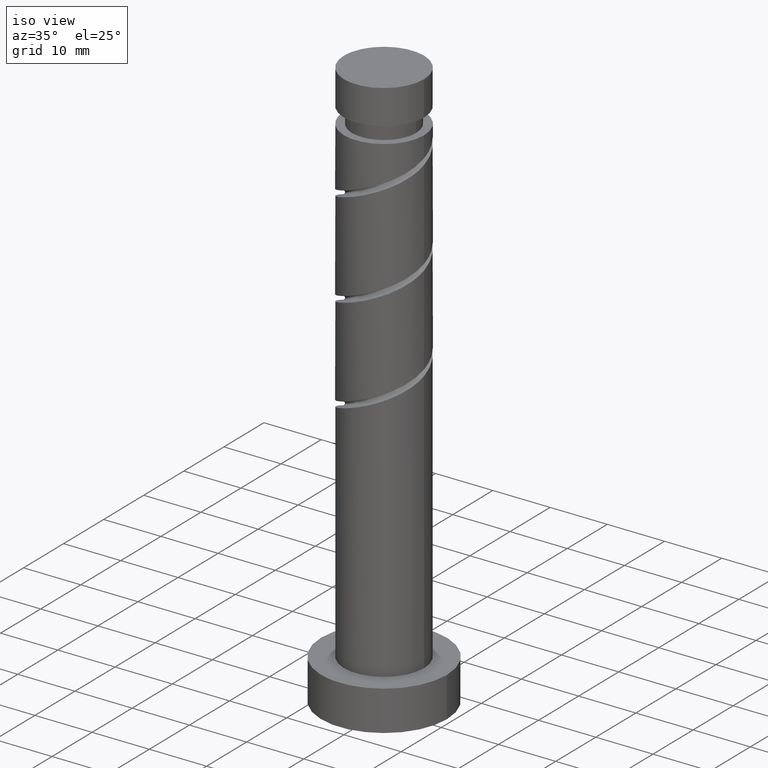
[diagram: clean part render]
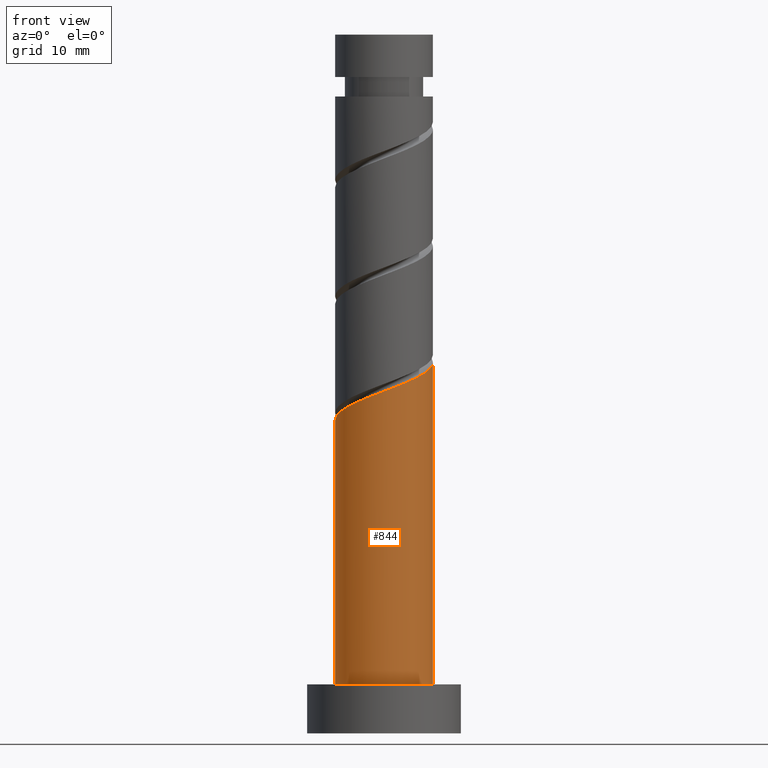
[diagram: tour spotlight — one face highlighted and labeled with its STEP entity id]
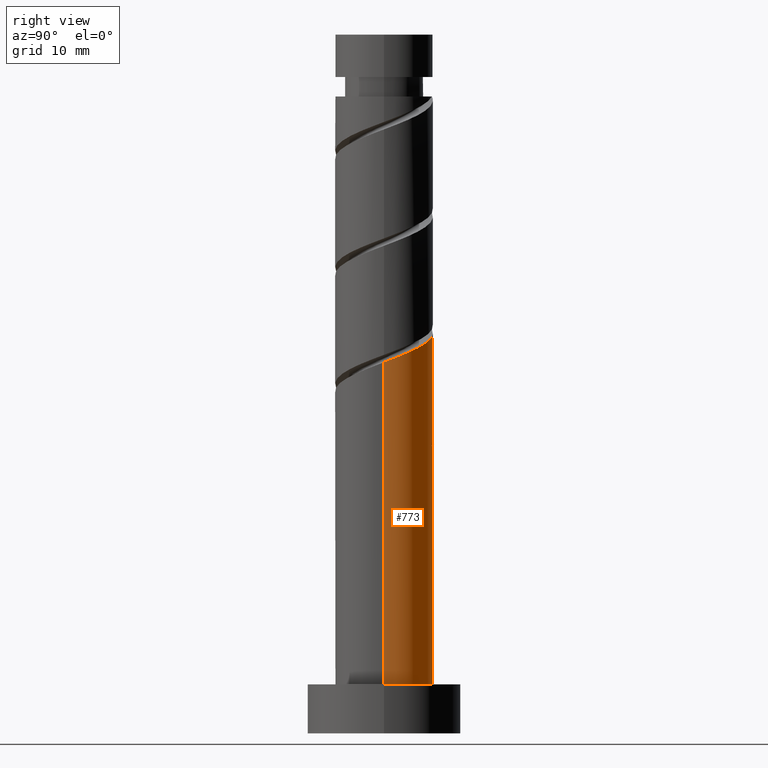
[diagram: tour spotlight — one face highlighted and labeled with its STEP entity id]
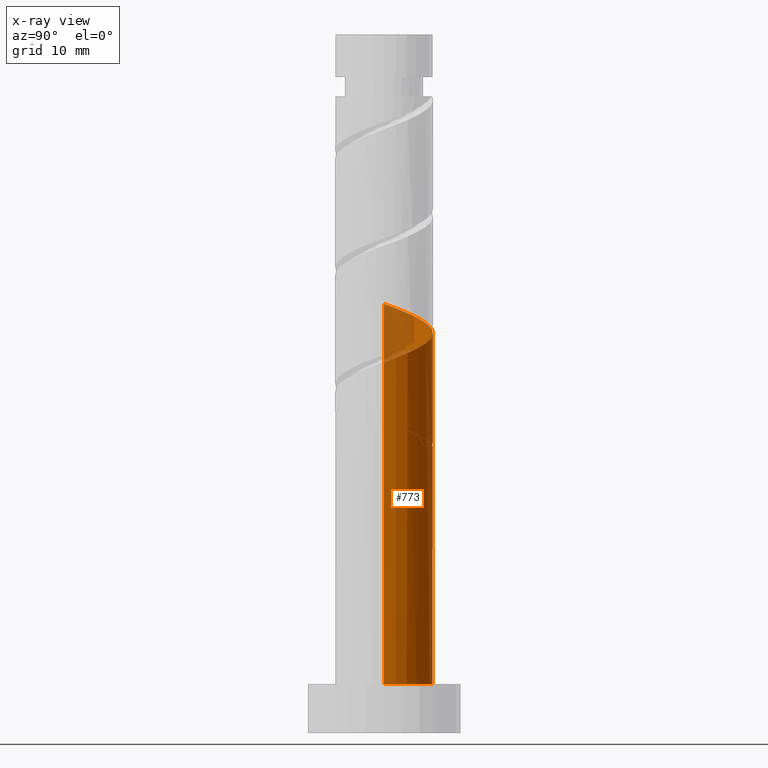
[diagram: x-ray of the same camera — body ghosted, this tour face saturated]
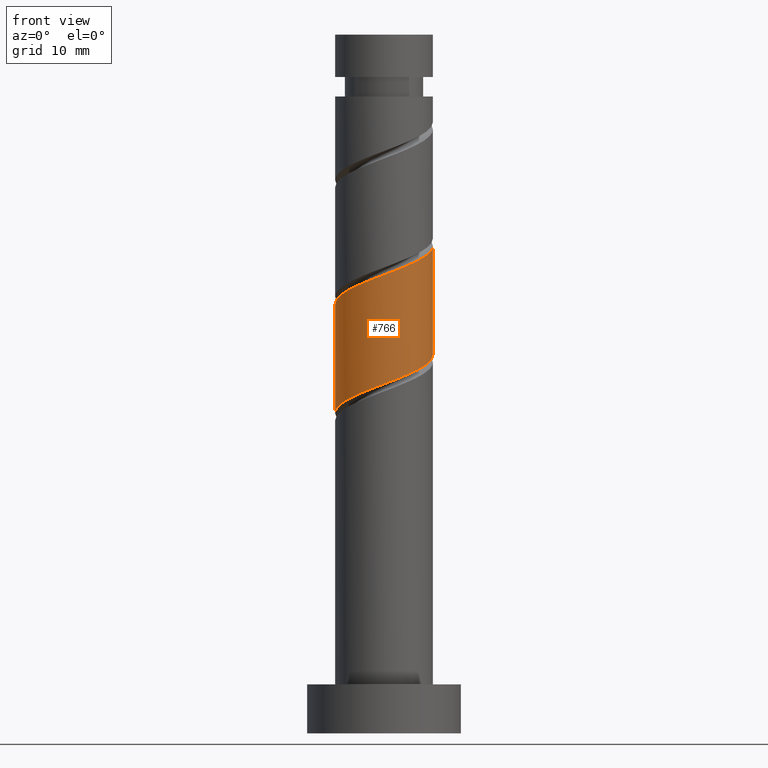
[diagram: tour spotlight — one face highlighted and labeled with its STEP entity id]
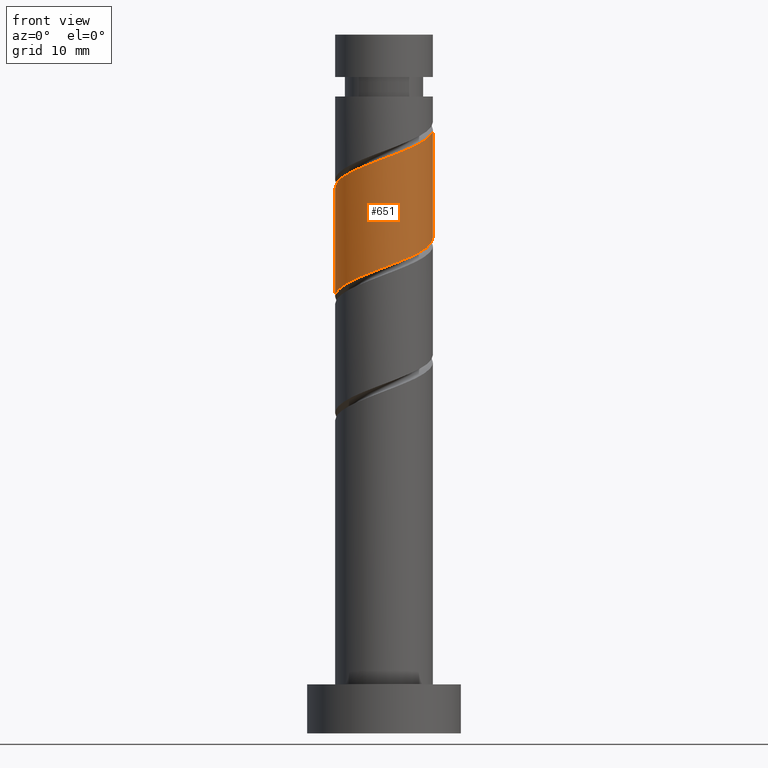
[diagram: tour spotlight — one face highlighted and labeled with its STEP entity id]
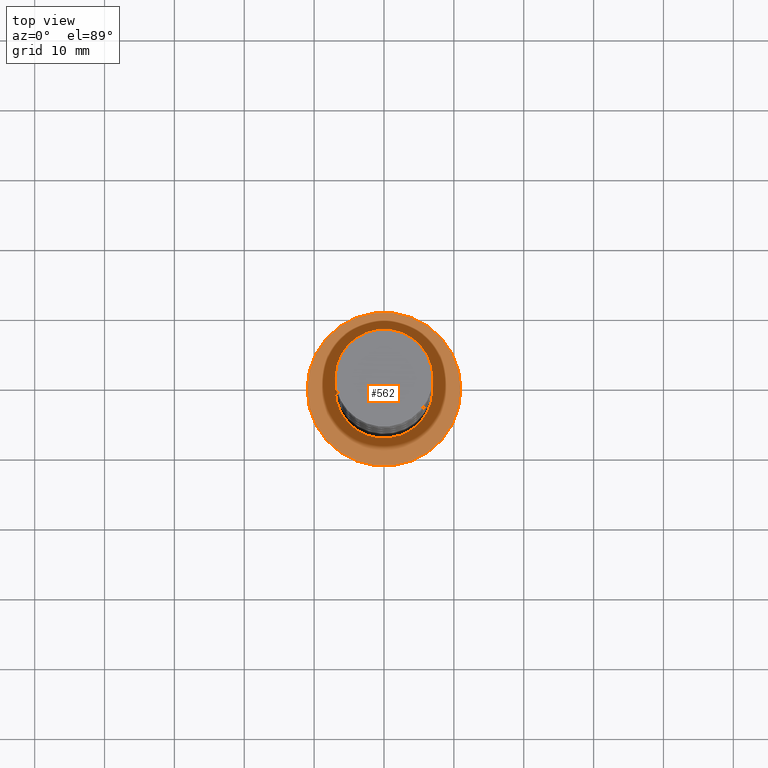
[diagram: tour spotlight — one face highlighted and labeled with its STEP entity id]
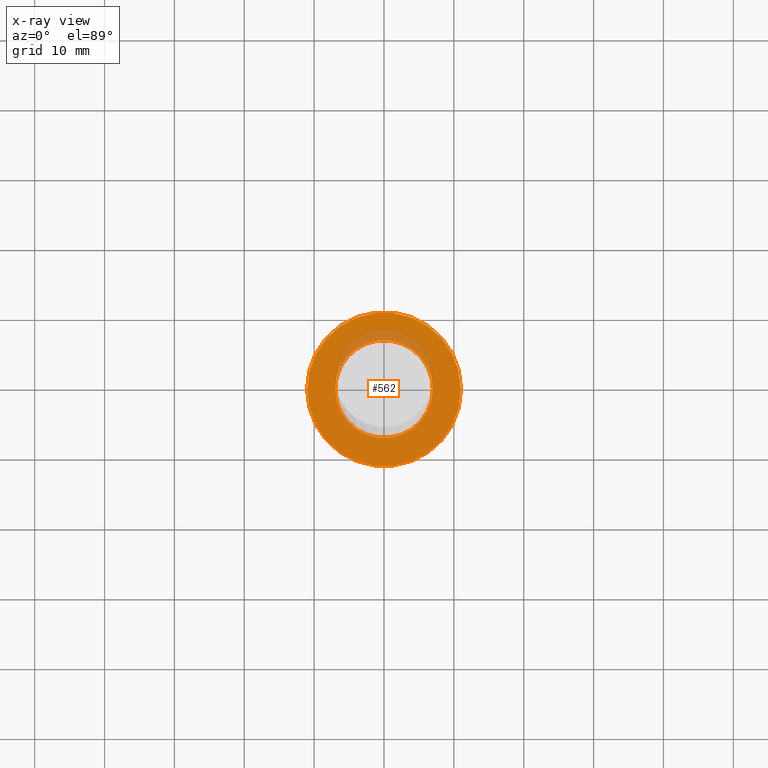
[diagram: x-ray of the same camera — body ghosted, this tour face saturated]
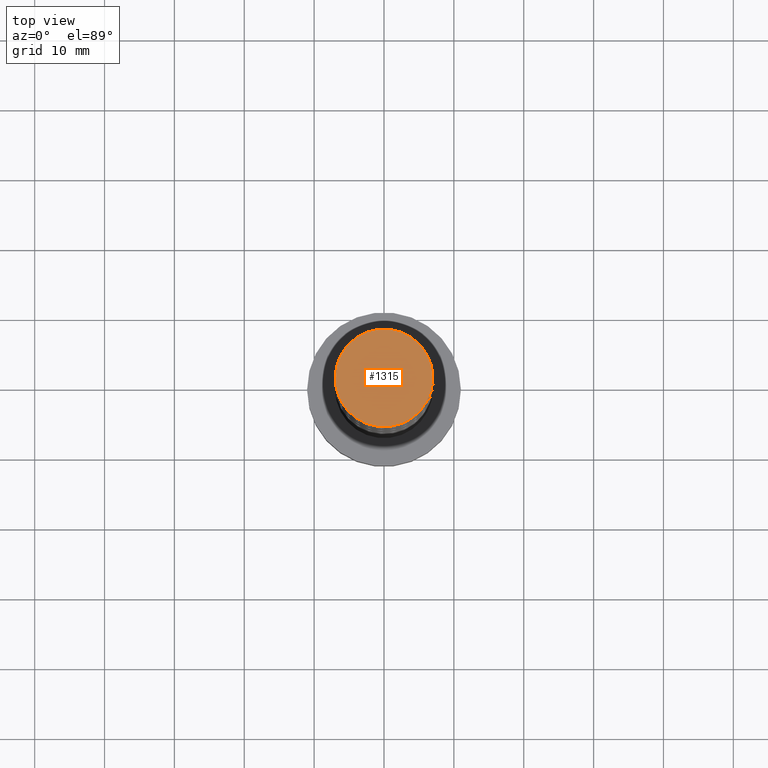
[diagram: tour spotlight — one face highlighted and labeled with its STEP entity id]
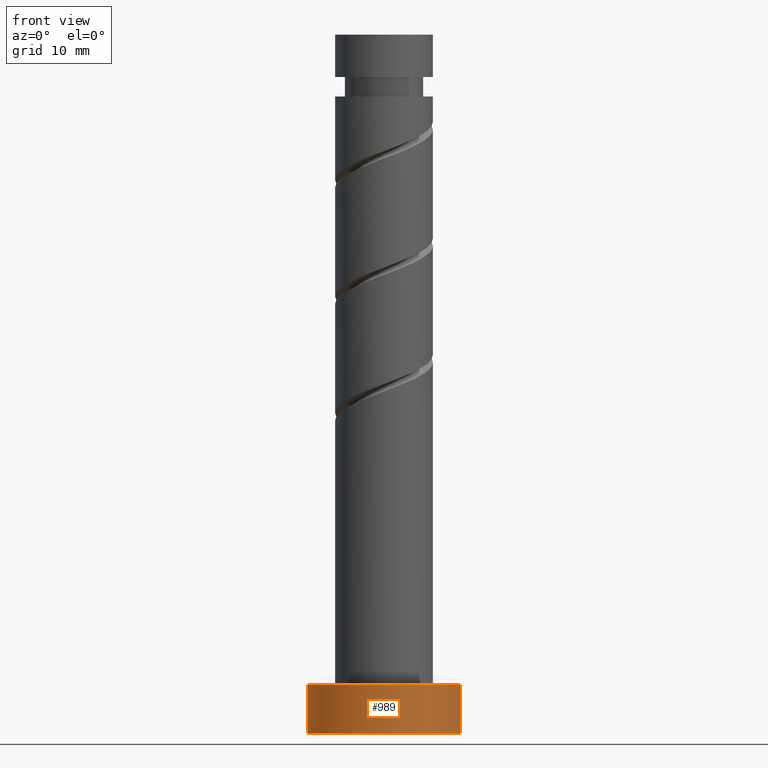
[diagram: tour spotlight — one face highlighted and labeled with its STEP entity id]
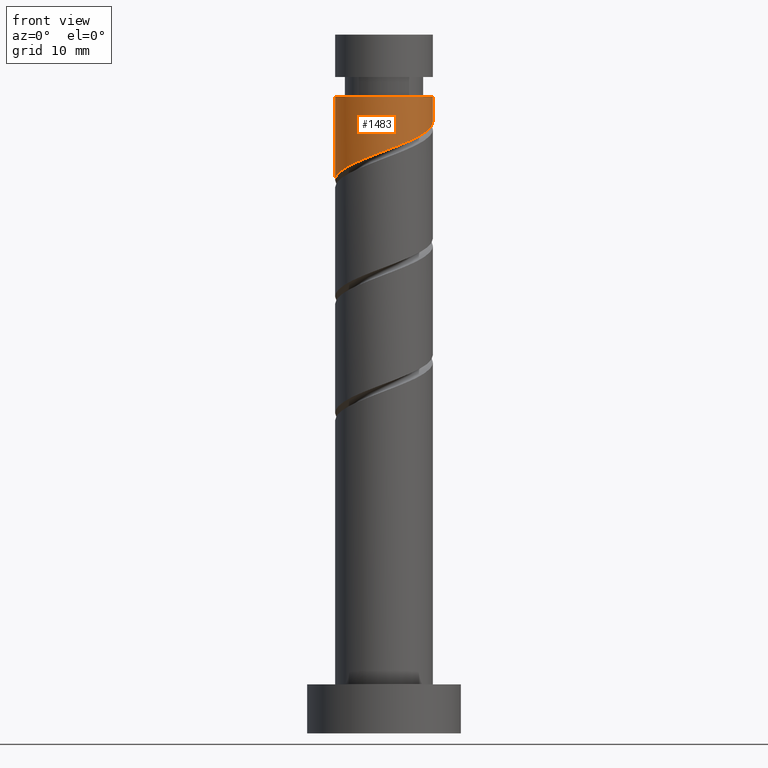
[diagram: tour spotlight — one face highlighted and labeled with its STEP entity id]
A machine part: a face-by-face anatomy tour. The part has 21 B-rep faces; the first image is the clean iso view, then the 8 largest visible faces are spotlighted one at a time (largest first), each with its STEP entity span.

Face 1 — front view, entity #844. In plain terms, the highlighted cylindrical surface (partial cylindrical patch) has radius 7 mm, axis along (-0, -0, -1).
Definition (entity closure, byte-faithful):
#30 = DIRECTION ( 'NONE',  ( 0.000000000000000000, 0.000000000000000000, 1.000000000000000000 ) ) ;
#54 = VERTEX_POINT ( 'NONE', #94 ) ;
#57 = CARTESIAN_POINT ( 'NONE',  ( -7.000000000000009770, 5.303333124147260653E-15, 44.78556087694620658 ) ) ;
#67 = CARTESIAN_POINT ( 'NONE',  ( 0.1833793242891948172, -7.105620382879023644, 49.02011946897203387 ) ) ;
#94 = CARTESIAN_POINT ( 'NONE',  ( -7.000000000000009770, 5.303333124147260653E-15, 44.78556087694620658 ) ) ;
#97 = ORIENTED_EDGE ( 'NONE', *, *, #701, .F. ) ;
#155 = AXIS2_PLACEMENT_3D ( 'NONE', #617, #30, #1276 ) ;
#171 = CARTESIAN_POINT ( 'NONE',  ( 7.000000000000000888, 8.572527594031472204E-16, 7.000000000000000000 ) ) ;
#177 = CARTESIAN_POINT ( 'NONE',  ( -6.061958099077145334, -3.711621344802781053, 46.24234169119424109 ) ) ;
#183 = CARTESIAN_POINT ( 'NONE',  ( -6.965826557536224151, -1.414471410982079069, 45.31641576526831727 ) ) ;
#198 = CARTESIAN_POINT ( 'NONE',  ( -3.342436566413458099, -6.150456714708457007, 47.63123058008311972 ) ) ;
#207 = CARTESIAN_POINT ( 'NONE',  ( 0.000000000000000000, 0.000000000000000000, 100.0000000000000000 ) ) ;
#255 = DIRECTION ( 'NONE',  ( -0.000000000000000000, -0.000000000000000000, -1.000000000000000000 ) ) ;
#284 = CARTESIAN_POINT ( 'NONE',  ( 7.000000000000013323, -1.141380602743204520, 52.68897469791394172 ) ) ;
#285 = VECTOR ( 'NONE', #1124, 1000.000000000000000 ) ;
#305 = CARTESIAN_POINT ( 'NONE',  ( 4.707881453605411437, -5.325347051691634803, 50.87197132082386730 ) ) ;
#313 = CARTESIAN_POINT ( 'NONE',  ( 5.476609438485875003, -4.359673044883936477, 51.33493428378682921 ) ) ;
#370 = AXIS2_PLACEMENT_3D ( 'NONE', #207, #460, #1264 ) ;
#395 = EDGE_CURVE ( 'NONE', #54, #726, #439, .T. ) ;
#401 = CARTESIAN_POINT ( 'NONE',  ( -2.257945103930811825, -6.739818462673714983, 48.09419354304610295 ) ) ;
#414 = CARTESIAN_POINT ( 'NONE',  ( 1.392982411949267973, -6.860000000000009202, 49.48308243193496736 ) ) ;
#439 = LINE ( 'NONE', #1356, #285 ) ;
#460 = DIRECTION ( 'NONE',  ( -0.000000000000000000, -0.000000000000000000, -1.000000000000000000 ) ) ;
#486 = EDGE_LOOP ( 'NONE', ( #1122, #97, #1146, #1193 ) ) ;
#540 = CARTESIAN_POINT ( 'NONE',  ( -4.426928028896106149, -5.561094966743207024, 47.16826761712017912 ) ) ;
#572 = CARTESIAN_POINT ( 'NONE',  ( 7.000000000000009770, -5.303333124147260653E-15, 53.11889421027954228 ) ) ;
#617 = CARTESIAN_POINT ( 'NONE',  ( 0.000000000000000000, 0.000000000000000000, 7.000000000000000000 ) ) ;
#649 = CARTESIAN_POINT ( 'NONE',  ( -6.513892328306680746, -2.563046377892429284, 45.77937872823127208 ) ) ;
#689 = CARTESIAN_POINT ( 'NONE',  ( -7.000000000000000888, 0.000000000000000000, 7.000000000000000000 ) ) ;
#695 =( BOUNDED_CURVE ( )  B_SPLINE_CURVE ( 2, ( #57, #1331, #1445, #183, #649, #177, #1104, #540, #198, #401, #998, #67, #414, #889, #895, #305, #313, #771, #1230, #284, #1143 ),
 .UNSPECIFIED., .F., .T. ) 
 B_SPLINE_CURVE_WITH_KNOTS ( ( 3, 2, 2, 2, 2, 2, 2, 2, 2, 2, 3 ),
 ( 0.05452480538552906264, 0.05555555555555558023, 0.06944444444444441977, 0.08333333333333337034, 0.09722222222222220989, 0.1111111111111111605, 0.1250000000000000000, 0.1388888888888888395, 0.1527777777777777901, 0.1666666666666666297, 0.1795248053855290626 ),
 .UNSPECIFIED. ) 
 CURVE ( )  GEOMETRIC_REPRESENTATION_ITEM ( )  RATIONAL_B_SPLINE_CURVE ( ( 0.9071930855141264738, 0.9080659294509740853, 0.9090909090909141677, 0.8952797754656484086, 0.9090909090909141677, 0.8952797754656484086, 0.9090909090909141677, 0.8952797754656484086, 0.9090909090909141677, 0.8952797754656484086, 0.9090909090909141677, 0.8952797754656484086, 0.9090909090909141677, 0.8952797754656484086, 0.9090909090909141677, 0.8952797754656484086, 0.9090909090909141677, 0.8952797754656484086, 0.9090909090909141677, 0.8963047551055884909, 0.9071930855141264738 ) ) 
 REPRESENTATION_ITEM ( '' )  );
#701 = EDGE_CURVE ( 'NONE', #54, #816, #695, .T. ) ;
#703 = CYLINDRICAL_SURFACE ( 'NONE', #370, 7.000000000000000888 ) ;
#711 = LINE ( 'NONE', #1157, #1256 ) ;
#726 = VERTEX_POINT ( 'NONE', #689 ) ;
#771 = CARTESIAN_POINT ( 'NONE',  ( 6.245337423366341234, -3.393999038076243480, 51.79789724674980533 ) ) ;
#816 = VERTEX_POINT ( 'NONE', #572 ) ;
#844 = ADVANCED_FACE ( 'NONE', ( #1041 ), #703, .T. ) ;
#889 = CARTESIAN_POINT ( 'NONE',  ( 2.602585499609338715, -6.614379617121004529, 49.94604539489793638 ) ) ;
#895 = CARTESIAN_POINT ( 'NONE',  ( 3.655233476607374854, -5.969863334406317001, 50.40900835786089829 ) ) ;
#980 = CIRCLE ( 'NONE', #155, 7.000000000000000888 ) ;
#998 = CARTESIAN_POINT ( 'NONE',  ( -1.037282889820807741, -6.922719422776364873, 48.55715650600905064 ) ) ;
#1041 = FACE_OUTER_BOUND ( 'NONE', #486, .T. ) ;
#1043 = VERTEX_POINT ( 'NONE', #171 ) ;
#1104 = CARTESIAN_POINT ( 'NONE',  ( -5.244443063986622633, -4.636358155772990486, 46.70530465415719590 ) ) ;
#1122 = ORIENTED_EDGE ( 'NONE', *, *, #1437, .F. ) ;
#1124 = DIRECTION ( 'NONE',  ( -0.000000000000000000, -0.000000000000000000, -1.000000000000000000 ) ) ;
#1143 = CARTESIAN_POINT ( 'NONE',  ( 7.000000000000009770, -5.303333124147260653E-15, 53.11889421027954228 ) ) ;
#1146 = ORIENTED_EDGE ( 'NONE', *, *, #395, .T. ) ;
#1157 = CARTESIAN_POINT ( 'NONE',  ( 7.000000000000000888, 8.572527594031472204E-16, 100.0000000000000000 ) ) ;
#1193 = ORIENTED_EDGE ( 'NONE', *, *, #1465, .T. ) ;
#1230 = CARTESIAN_POINT ( 'NONE',  ( 6.637425475935891939, -2.223641844227021824, 52.26086020971274593 ) ) ;
#1256 = VECTOR ( 'NONE', #255, 1000.000000000000000 ) ;
#1264 = DIRECTION ( 'NONE',  ( -1.000000000000000000, 0.000000000000000000, 0.000000000000000000 ) ) ;
#1276 = DIRECTION ( 'NONE',  ( 1.000000000000000000, 0.000000000000000000, 0.000000000000000000 ) ) ;
#1331 = CARTESIAN_POINT ( 'NONE',  ( -7.000000000000011546, -0.09031172032414433448, 44.81957825087856406 ) ) ;
#1356 = CARTESIAN_POINT ( 'NONE',  ( -7.000000000000000888, 0.000000000000000000, 100.0000000000000000 ) ) ;
#1437 = EDGE_CURVE ( 'NONE', #816, #1043, #711, .T. ) ;
#1445 = CARTESIAN_POINT ( 'NONE',  ( -6.997670043020834285, -0.1805933803021409767, 44.85345280230533405 ) ) ;
#1465 = EDGE_CURVE ( 'NONE', #726, #1043, #980, .T. ) ;

Face 2 — right view, entity #773. An x-ray twin of the same camera follows (body ghosted, this face saturated) — the face is partly hidden behind the body. In plain terms, the highlighted cylindrical surface (partial cylindrical patch) has radius 7 mm, axis along (-0, -0, -1).
Definition (entity closure, byte-faithful):
#25 = LINE ( 'NONE', #1279, #1096 ) ;
#48 = CARTESIAN_POINT ( 'NONE',  ( 2.257945103930814490, 6.739818462673713206, 56.42752687637943154 ) ) ;
#54 = VERTEX_POINT ( 'NONE', #94 ) ;
#85 = CARTESIAN_POINT ( 'NONE',  ( -6.637425475935891939, 2.223641844227019160, 60.59419354304608163 ) ) ;
#94 = CARTESIAN_POINT ( 'NONE',  ( -7.000000000000009770, 5.303333124147260653E-15, 44.78556087694620658 ) ) ;
#105 = DIRECTION ( 'NONE',  ( -1.000000000000000000, 0.000000000000000000, 0.000000000000000000 ) ) ;
#109 = CARTESIAN_POINT ( 'NONE',  ( -2.602585499609341824, 6.614379617121002752, 41.61271206156461488 ) ) ;
#118 = CARTESIAN_POINT ( 'NONE',  ( -6.999999999999997335, -3.465840238879363017E-15, 45.84727065359040665 ) ) ;
#139 = CARTESIAN_POINT ( 'NONE',  ( -4.426928028896096379, 5.561094966743197254, 43.46456391341645542 ) ) ;
#151 = CARTESIAN_POINT ( 'NONE',  ( -6.513892328306670088, 2.563046377892426619, 44.85345280230532694 ) ) ;
#153 = ORIENTED_EDGE ( 'NONE', *, *, #1268, .F. ) ;
#171 = CARTESIAN_POINT ( 'NONE',  ( 7.000000000000000888, 8.572527594031472204E-16, 7.000000000000000000 ) ) ;
#188 = CARTESIAN_POINT ( 'NONE',  ( 6.997670043020834285, 0.1805933803021416428, 53.18678613563866975 ) ) ;
#203 = CARTESIAN_POINT ( 'NONE',  ( -7.000000000000013323, 1.141380602743200523, 61.02230803124725611 ) ) ;
#246 = CIRCLE ( 'NONE', #862, 7.000000000000000888 ) ;
#255 = DIRECTION ( 'NONE',  ( -0.000000000000000000, -0.000000000000000000, -1.000000000000000000 ) ) ;
#285 = VECTOR ( 'NONE', #1124, 1000.000000000000000 ) ;
#290 = DIRECTION ( 'NONE',  ( -1.000000000000000000, 0.000000000000000000, 0.000000000000000000 ) ) ;
#296 = CARTESIAN_POINT ( 'NONE',  ( 6.061958099077146223, 3.711621344802777056, 54.57567502452758390 ) ) ;
#311 = CARTESIAN_POINT ( 'NONE',  ( 1.392982411949269528, 6.859999999999999432, 41.14974909860163876 ) ) ;
#332 =( BOUNDED_CURVE ( )  B_SPLINE_CURVE ( 2, ( #928, #109, #1039, #777, #458, #1227, #663, #738, #1080 ),
 .UNSPECIFIED., .F., .T. ) 
 B_SPLINE_CURVE_WITH_KNOTS ( ( 3, 2, 2, 2, 3 ),
 ( 0.000000000000000000, 0.01388888888888883955, 0.02777777777777779011, 0.04166666666666662966, 0.05452480538552906264 ),
 .UNSPECIFIED. ) 
 CURVE ( )  GEOMETRIC_REPRESENTATION_ITEM ( )  RATIONAL_B_SPLINE_CURVE ( ( 0.9090909090909141677, 0.8952797754656484086, 0.9090909090909141677, 0.8952797754656484086, 0.9090909090909141677, 0.8952797754656484086, 0.9090909090909141677, 0.8963047551055884909, 0.9071930855141264738 ) ) 
 REPRESENTATION_ITEM ( '' )  );
#360 = ORIENTED_EDGE ( 'NONE', *, *, #395, .F. ) ;
#395 = EDGE_CURVE ( 'NONE', #54, #726, #439, .T. ) ;
#400 = CARTESIAN_POINT ( 'NONE',  ( -0.1833793242891969266, 7.105620382879022756, 57.35345280230534826 ) ) ;
#436 = AXIS2_PLACEMENT_3D ( 'NONE', #1469, #1453, #105 ) ;
#439 = LINE ( 'NONE', #1356, #285 ) ;
#458 = CARTESIAN_POINT ( 'NONE',  ( -5.476609438485875003, 4.359673044883936477, 43.00160095045348640 ) ) ;
#473 = VERTEX_POINT ( 'NONE', #501 ) ;
#482 = DIRECTION ( 'NONE',  ( 1.000000000000000000, 0.000000000000000000, 0.000000000000000000 ) ) ;
#501 = CARTESIAN_POINT ( 'NONE',  ( -6.999999999999997335, -3.465840238879362623E-15, 45.84727065359040665 ) ) ;
#508 = CARTESIAN_POINT ( 'NONE',  ( 1.037282889820812182, 6.922719422776363096, 56.89048983934237924 ) ) ;
#526 = EDGE_CURVE ( 'NONE', #830, #473, #25, .T. ) ;
#537 = CARTESIAN_POINT ( 'NONE',  ( 5.244443063986622633, 4.636358155772992262, 55.03863798749053160 ) ) ;
#546 = CARTESIAN_POINT ( 'NONE',  ( -2.602585499609341824, 6.614379617121002752, 58.27937872823128629 ) ) ;
#572 = CARTESIAN_POINT ( 'NONE',  ( 7.000000000000009770, -5.303333124147260653E-15, 53.11889421027954228 ) ) ;
#576 = CARTESIAN_POINT ( 'NONE',  ( -4.707881453605412325, 5.325347051691633915, 59.20530465415720300 ) ) ;
#610 = DIRECTION ( 'NONE',  ( -0.000000000000000000, -0.000000000000000000, -1.000000000000000000 ) ) ;
#640 = AXIS2_PLACEMENT_3D ( 'NONE', #720, #1049, #482 ) ;
#642 = CARTESIAN_POINT ( 'NONE',  ( 6.965826557536224151, 1.414471410982078625, 53.64974909860166008 ) ) ;
#663 = CARTESIAN_POINT ( 'NONE',  ( -6.637425475935891939, 2.223641844227019160, 43.92752687637941733 ) ) ;
#671 = CARTESIAN_POINT ( 'NONE',  ( -6.245337423366342122, 3.393999038076242591, 60.13123058008313393 ) ) ;
#689 = CARTESIAN_POINT ( 'NONE',  ( -7.000000000000000888, 0.000000000000000000, 7.000000000000000000 ) ) ;
#693 = ORIENTED_EDGE ( 'NONE', *, *, #1437, .T. ) ;
#705 = EDGE_LOOP ( 'NONE', ( #153, #693, #829, #360, #1005, #935, #1456, #753 ) ) ;
#711 = LINE ( 'NONE', #1157, #1256 ) ;
#713 = CARTESIAN_POINT ( 'NONE',  ( -3.342436566413450993, 6.150456714708447237, 43.00160095045348640 ) ) ;
#720 = CARTESIAN_POINT ( 'NONE',  ( 0.000000000000000000, 0.000000000000000000, 7.000000000000000000 ) ) ;
#726 = VERTEX_POINT ( 'NONE', #689 ) ;
#733 = CARTESIAN_POINT ( 'NONE',  ( 1.392982411949269528, 6.859999999999999432, 41.14974909860163876 ) ) ;
#738 = CARTESIAN_POINT ( 'NONE',  ( -7.000000000000013323, 1.141380602743200523, 44.35564136458060602 ) ) ;
#741 = CARTESIAN_POINT ( 'NONE',  ( -5.244443063986612863, 4.636358155772986933, 43.92752687637941023 ) ) ;
#753 = ORIENTED_EDGE ( 'NONE', *, *, #526, .F. ) ;
#773 = ADVANCED_FACE ( 'NONE', ( #1254 ), #1130, .T. ) ;
#777 = CARTESIAN_POINT ( 'NONE',  ( -4.707881453605412325, 5.325347051691633915, 42.53863798749053160 ) ) ;
#805 = CARTESIAN_POINT ( 'NONE',  ( -3.655233476607374854, 5.969863334406317001, 58.74234169119423399 ) ) ;
#816 = VERTEX_POINT ( 'NONE', #572 ) ;
#826 = CARTESIAN_POINT ( 'NONE',  ( -6.965826557536210828, 1.414471410982078625, 45.31641576526831017 ) ) ;
#829 = ORIENTED_EDGE ( 'NONE', *, *, #870, .T. ) ;
#830 = VERTEX_POINT ( 'NONE', #1035 ) ;
#836 = VERTEX_POINT ( 'NONE', #1239 ) ;
#862 = AXIS2_PLACEMENT_3D ( 'NONE', #1203, #873, #290 ) ;
#870 = EDGE_CURVE ( 'NONE', #1043, #726, #1487, .T. ) ;
#873 = DIRECTION ( 'NONE',  ( 0.000000000000000000, -0.000000000000000000, -1.000000000000000000 ) ) ;
#900 = CARTESIAN_POINT ( 'NONE',  ( -1.392982411949267085, 6.860000000000009202, 57.81641576526829596 ) ) ;
#902 =( BOUNDED_CURVE ( )  B_SPLINE_CURVE ( 2, ( #1088, #1322, #188, #642, #1429, #296, #537, #1004, #1443, #48, #508, #400, #900, #546, #805, #576, #1236, #671, #85, #203, #1026 ),
 .UNSPECIFIED., .F., .T. ) 
 B_SPLINE_CURVE_WITH_KNOTS ( ( 3, 2, 2, 2, 2, 2, 2, 2, 2, 2, 3 ),
 ( 0.1795248053855290626, 0.1805555555555555802, 0.1944444444444444198, 0.2083333333333333703, 0.2222222222222222099, 0.2361111111111111605, 0.2500000000000000000, 0.2638888888888888395, 0.2777777777777777901, 0.2916666666666666297, 0.3045248053855290626 ),
 .UNSPECIFIED. ) 
 CURVE ( )  GEOMETRIC_REPRESENTATION_ITEM ( )  RATIONAL_B_SPLINE_CURVE ( ( 0.9071930855141264738, 0.9080659294509740853, 0.9090909090909141677, 0.8952797754656484086, 0.9090909090909141677, 0.8952797754656484086, 0.9090909090909141677, 0.8952797754656484086, 0.9090909090909141677, 0.8952797754656484086, 0.9090909090909141677, 0.8952797754656484086, 0.9090909090909141677, 0.8952797754656484086, 0.9090909090909141677, 0.8952797754656484086, 0.9090909090909141677, 0.8952797754656484086, 0.9090909090909141677, 0.8963047551055884909, 0.9071930855141264738 ) ) 
 REPRESENTATION_ITEM ( '' )  );
#928 = CARTESIAN_POINT ( 'NONE',  ( -1.392982411949267085, 6.860000000000009202, 41.14974909860163876 ) ) ;
#935 = ORIENTED_EDGE ( 'NONE', *, *, #1248, .T. ) ;
#971 = EDGE_CURVE ( 'NONE', #473, #1408, #1311, .T. ) ;
#1004 = CARTESIAN_POINT ( 'NONE',  ( 4.426928028896107925, 5.561094966743206136, 55.50160095045352904 ) ) ;
#1005 = ORIENTED_EDGE ( 'NONE', *, *, #1432, .F. ) ;
#1026 = CARTESIAN_POINT ( 'NONE',  ( -7.000000000000009770, 5.303333124147260653E-15, 61.45222754361287798 ) ) ;
#1035 = CARTESIAN_POINT ( 'NONE',  ( -7.000000000000009770, 5.303333124147260653E-15, 61.45222754361287087 ) ) ;
#1039 = CARTESIAN_POINT ( 'NONE',  ( -3.655233476607374854, 5.969863334406317001, 42.07567502452757680 ) ) ;
#1043 = VERTEX_POINT ( 'NONE', #171 ) ;
#1049 = DIRECTION ( 'NONE',  ( 0.000000000000000000, 0.000000000000000000, 1.000000000000000000 ) ) ;
#1064 = CARTESIAN_POINT ( 'NONE',  ( -6.999999999999997335, 0.09031172032414595818, 45.81325327965803496 ) ) ;
#1073 = CARTESIAN_POINT ( 'NONE',  ( -1.037282889820803744, 6.922719422776354214, 42.07567502452754837 ) ) ;
#1080 = CARTESIAN_POINT ( 'NONE',  ( -7.000000000000009770, 5.303333124147260653E-15, 44.78556087694620658 ) ) ;
#1088 = CARTESIAN_POINT ( 'NONE',  ( 7.000000000000009770, -5.303333124147260653E-15, 53.11889421027954228 ) ) ;
#1096 = VECTOR ( 'NONE', #610, 1000.000000000000000 ) ;
#1124 = DIRECTION ( 'NONE',  ( -0.000000000000000000, -0.000000000000000000, -1.000000000000000000 ) ) ;
#1130 = CYLINDRICAL_SURFACE ( 'NONE', #436, 7.000000000000000888 ) ;
#1157 = CARTESIAN_POINT ( 'NONE',  ( 7.000000000000000888, 8.572527594031472204E-16, 100.0000000000000000 ) ) ;
#1160 = CARTESIAN_POINT ( 'NONE',  ( -2.257945103930805608, 6.739818462673701660, 42.53863798749053160 ) ) ;
#1203 = CARTESIAN_POINT ( 'NONE',  ( 0.000000000000000000, 0.000000000000000000, 41.14974909860163876 ) ) ;
#1227 = CARTESIAN_POINT ( 'NONE',  ( -6.245337423366342122, 3.393999038076242591, 43.46456391341644832 ) ) ;
#1236 = CARTESIAN_POINT ( 'NONE',  ( -5.476609438485875003, 4.359673044883936477, 59.66826761712015070 ) ) ;
#1239 = CARTESIAN_POINT ( 'NONE',  ( -1.392982411949267085, 6.860000000000009202, 41.14974909860163876 ) ) ;
#1248 = EDGE_CURVE ( 'NONE', #836, #1408, #246, .T. ) ;
#1254 = FACE_OUTER_BOUND ( 'NONE', #705, .T. ) ;
#1256 = VECTOR ( 'NONE', #255, 1000.000000000000000 ) ;
#1268 = EDGE_CURVE ( 'NONE', #816, #830, #902, .T. ) ;
#1270 = CARTESIAN_POINT ( 'NONE',  ( -6.061958099077132900, 3.711621344802776168, 44.39048983934237924 ) ) ;
#1278 = CARTESIAN_POINT ( 'NONE',  ( 0.1833793242891981479, 7.105620382879009433, 41.61271206156460778 ) ) ;
#1279 = CARTESIAN_POINT ( 'NONE',  ( -7.000000000000000888, 0.000000000000000000, 100.0000000000000000 ) ) ;
#1311 =( BOUNDED_CURVE ( )  B_SPLINE_CURVE ( 2, ( #118, #1064, #1414, #826, #151, #1270, #741, #139, #713, #1160, #1073, #1278, #733 ),
 .UNSPECIFIED., .F., .T. ) 
 B_SPLINE_CURVE_WITH_KNOTS ( ( 3, 2, 2, 2, 2, 2, 3 ),
 ( 0.9295248053855290626, 0.9305555555555555802, 0.9444444444444444198, 0.9583333333333333703, 0.9722222222222222099, 0.9861111111111111605, 1.000000000000000000 ),
 .UNSPECIFIED. ) 
 CURVE ( )  GEOMETRIC_REPRESENTATION_ITEM ( )  RATIONAL_B_SPLINE_CURVE ( ( 0.9071930855141197014, 0.9080659294509674240, 0.9090909090909075063, 0.8952797754656419693, 0.9090909090909075063, 0.8952797754656419693, 0.9090909090909075063, 0.8952797754656419693, 0.9090909090909075063, 0.8952797754656419693, 0.9090909090909075063, 0.8952797754656419693, 0.9090909090909075063 ) ) 
 REPRESENTATION_ITEM ( '' )  );
#1322 = CARTESIAN_POINT ( 'NONE',  ( 7.000000000000011546, 0.09031172032414463979, 53.15291158421190687 ) ) ;
#1356 = CARTESIAN_POINT ( 'NONE',  ( -7.000000000000000888, 0.000000000000000000, 100.0000000000000000 ) ) ;
#1408 = VERTEX_POINT ( 'NONE', #311 ) ;
#1414 = CARTESIAN_POINT ( 'NONE',  ( -6.997670043020820962, 0.1805933803021424477, 45.77937872823127208 ) ) ;
#1429 = CARTESIAN_POINT ( 'NONE',  ( 6.513892328306682522, 2.563046377892426619, 54.11271206156460778 ) ) ;
#1432 = EDGE_CURVE ( 'NONE', #836, #54, #332, .T. ) ;
#1437 = EDGE_CURVE ( 'NONE', #816, #1043, #711, .T. ) ;
#1443 = CARTESIAN_POINT ( 'NONE',  ( 3.342436566413459431, 6.150456714708457007, 55.96456391341645542 ) ) ;
#1453 = DIRECTION ( 'NONE',  ( -0.000000000000000000, -0.000000000000000000, -1.000000000000000000 ) ) ;
#1456 = ORIENTED_EDGE ( 'NONE', *, *, #971, .F. ) ;
#1469 = CARTESIAN_POINT ( 'NONE',  ( 0.000000000000000000, 0.000000000000000000, 100.0000000000000000 ) ) ;
#1487 = CIRCLE ( 'NONE', #640, 7.000000000000000888 ) ;

Face 3 — front view, entity #766. In plain terms, the highlighted cylindrical surface (partial cylindrical patch) has radius 7 mm, axis along (-0, -0, -1).
Definition (entity closure, byte-faithful):
#8 = CARTESIAN_POINT ( 'NONE',  ( -6.245337423366329688, -3.393999038076235486, 47.16826761712015781 ) ) ;
#25 = LINE ( 'NONE', #1279, #1096 ) ;
#55 = CARTESIAN_POINT ( 'NONE',  ( -7.000000000000009770, 5.303333124147260653E-15, 61.45222754361287798 ) ) ;
#60 = CARTESIAN_POINT ( 'NONE',  ( 4.707881453605411437, -5.325347051691634803, 67.53863798749056002 ) ) ;
#66 = CARTESIAN_POINT ( 'NONE',  ( -6.965826557536224151, -1.414471410982079069, 61.98308243193499578 ) ) ;
#69 =( BOUNDED_CURVE ( )  B_SPLINE_CURVE ( 2, ( #119, #1367, #800, #691, #696, #1050, #818, #106, #1485, #320, #342, #593, #1240, #1260, #208, #931, #919, #8, #1348, #1265, #231 ),
 .UNSPECIFIED., .F., .T. ) 
 B_SPLINE_CURVE_WITH_KNOTS ( ( 3, 2, 2, 2, 2, 2, 2, 2, 2, 2, 3 ),
 ( 0.8045248053855290626, 0.8055555555555555802, 0.8194444444444444198, 0.8333333333333333703, 0.8472222222222222099, 0.8611111111111111605, 0.8750000000000000000, 0.8888888888888888395, 0.9027777777777777901, 0.9166666666666666297, 0.9295248053855290626 ),
 .UNSPECIFIED. ) 
 CURVE ( )  GEOMETRIC_REPRESENTATION_ITEM ( )  RATIONAL_B_SPLINE_CURVE ( ( 0.9071930855141197014, 0.9080659294509674240, 0.9090909090909075063, 0.8952797754656419693, 0.9090909090909075063, 0.8952797754656419693, 0.9090909090909075063, 0.8952797754656419693, 0.9090909090909075063, 0.8952797754656419693, 0.9090909090909075063, 0.8952797754656419693, 0.9090909090909075063, 0.8952797754656419693, 0.9090909090909075063, 0.8952797754656419693, 0.9090909090909075063, 0.8952797754656419693, 0.9090909090909075063, 0.8963047551055820517, 0.9071930855141197014 ) ) 
 REPRESENTATION_ITEM ( '' )  );
#91 = EDGE_CURVE ( 'NONE', #724, #934, #210, .T. ) ;
#106 = CARTESIAN_POINT ( 'NONE',  ( 4.426928028896096379, -5.561094966743198142, 51.79789724674980533 ) ) ;
#119 = CARTESIAN_POINT ( 'NONE',  ( 7.000000000000000000, 9.411548924543097934E-16, 54.18060398692372814 ) ) ;
#141 = ORIENTED_EDGE ( 'NONE', *, *, #526, .T. ) ;
#142 = VECTOR ( 'NONE', #555, 1000.000000000000000 ) ;
#208 = CARTESIAN_POINT ( 'NONE',  ( -3.655233476607371745, -5.969863334406305455, 48.55715650600905064 ) ) ;
#210 = LINE ( 'NONE', #1010, #142 ) ;
#214 = DIRECTION ( 'NONE',  ( -1.000000000000000000, 0.000000000000000000, 0.000000000000000000 ) ) ;
#227 =( BOUNDED_CURVE ( )  B_SPLINE_CURVE ( 2, ( #55, #632, #655, #66, #648, #1436, #752, #991, #412, #762, #1099, #893, #1107, #528, #513, #60, #986, #407, #756, #1206, #997 ),
 .UNSPECIFIED., .F., .T. ) 
 B_SPLINE_CURVE_WITH_KNOTS ( ( 3, 2, 2, 2, 2, 2, 2, 2, 2, 2, 3 ),
 ( 0.3045248053855290626, 0.3055555555555555802, 0.3194444444444444198, 0.3333333333333333703, 0.3472222222222222099, 0.3611111111111111605, 0.3750000000000000000, 0.3888888888888888395, 0.4027777777777777901, 0.4166666666666666297, 0.4295248053855290626 ),
 .UNSPECIFIED. ) 
 CURVE ( )  GEOMETRIC_REPRESENTATION_ITEM ( )  RATIONAL_B_SPLINE_CURVE ( ( 0.9071930855141264738, 0.9080659294509740853, 0.9090909090909141677, 0.8952797754656484086, 0.9090909090909141677, 0.8952797754656484086, 0.9090909090909141677, 0.8952797754656484086, 0.9090909090909141677, 0.8952797754656484086, 0.9090909090909141677, 0.8952797754656484086, 0.9090909090909141677, 0.8952797754656484086, 0.9090909090909141677, 0.8952797754656484086, 0.9090909090909141677, 0.8952797754656484086, 0.9090909090909141677, 0.8963047551055884909, 0.9071930855141264738 ) ) 
 REPRESENTATION_ITEM ( '' )  );
#231 = CARTESIAN_POINT ( 'NONE',  ( -6.999999999999997335, -3.465840238879363017E-15, 45.84727065359040665 ) ) ;
#316 = EDGE_CURVE ( 'NONE', #934, #473, #69, .T. ) ;
#320 = CARTESIAN_POINT ( 'NONE',  ( 2.257945103930803832, -6.739818462673701660, 50.87197132082386730 ) ) ;
#342 = CARTESIAN_POINT ( 'NONE',  ( 1.037282889820803300, -6.922719422776354214, 50.40900835786089829 ) ) ;
#407 = CARTESIAN_POINT ( 'NONE',  ( 6.245337423366341234, -3.393999038076243480, 68.46456391341646963 ) ) ;
#412 = CARTESIAN_POINT ( 'NONE',  ( -3.342436566413458099, -6.150456714708457007, 64.29789724674979823 ) ) ;
#473 = VERTEX_POINT ( 'NONE', #501 ) ;
#501 = CARTESIAN_POINT ( 'NONE',  ( -6.999999999999997335, -3.465840238879362623E-15, 45.84727065359040665 ) ) ;
#513 = CARTESIAN_POINT ( 'NONE',  ( 3.655233476607374854, -5.969863334406317001, 67.07567502452756969 ) ) ;
#526 = EDGE_CURVE ( 'NONE', #830, #473, #25, .T. ) ;
#528 = CARTESIAN_POINT ( 'NONE',  ( 2.602585499609338715, -6.614379617121004529, 66.61271206156463620 ) ) ;
#529 = EDGE_LOOP ( 'NONE', ( #673, #984, #141, #1280 ) ) ;
#555 = DIRECTION ( 'NONE',  ( -0.000000000000000000, -0.000000000000000000, -1.000000000000000000 ) ) ;
#593 = CARTESIAN_POINT ( 'NONE',  ( -0.1833793242892007014, -7.105620382879011210, 49.94604539489795059 ) ) ;
#610 = DIRECTION ( 'NONE',  ( -0.000000000000000000, -0.000000000000000000, -1.000000000000000000 ) ) ;
#632 = CARTESIAN_POINT ( 'NONE',  ( -7.000000000000011546, -0.09031172032414433448, 61.48624491754523547 ) ) ;
#648 = CARTESIAN_POINT ( 'NONE',  ( -6.513892328306680746, -2.563046377892429284, 62.44604539489792217 ) ) ;
#655 = CARTESIAN_POINT ( 'NONE',  ( -6.997670043020834285, -0.1805933803021409767, 61.52011946897199834 ) ) ;
#673 = ORIENTED_EDGE ( 'NONE', *, *, #91, .F. ) ;
#691 = CARTESIAN_POINT ( 'NONE',  ( 6.965826557536210828, -1.414471410982079291, 53.64974909860164587 ) ) ;
#696 = CARTESIAN_POINT ( 'NONE',  ( 6.513892328306670088, -2.563046377892426175, 53.18678613563867685 ) ) ;
#724 = VERTEX_POINT ( 'NONE', #912 ) ;
#752 = CARTESIAN_POINT ( 'NONE',  ( -5.244443063986622633, -4.636358155772990486, 63.37197132082386730 ) ) ;
#756 = CARTESIAN_POINT ( 'NONE',  ( 6.637425475935891939, -2.223641844227021824, 68.92752687637943154 ) ) ;
#762 = CARTESIAN_POINT ( 'NONE',  ( -2.257945103930811825, -6.739818462673714983, 64.76086020971276014 ) ) ;
#766 = ADVANCED_FACE ( 'NONE', ( #918 ), #807, .T. ) ;
#799 = CARTESIAN_POINT ( 'NONE',  ( 0.000000000000000000, 0.000000000000000000, 100.0000000000000000 ) ) ;
#800 = CARTESIAN_POINT ( 'NONE',  ( 6.997670043020821851, -0.1805933803021447792, 54.11271206156460067 ) ) ;
#807 = CYLINDRICAL_SURFACE ( 'NONE', #1439, 7.000000000000000888 ) ;
#818 = CARTESIAN_POINT ( 'NONE',  ( 5.244443063986611975, -4.636358155772988709, 52.26086020971274593 ) ) ;
#830 = VERTEX_POINT ( 'NONE', #1035 ) ;
#893 = CARTESIAN_POINT ( 'NONE',  ( 0.1833793242891948172, -7.105620382879023644, 65.68678613563869817 ) ) ;
#912 = CARTESIAN_POINT ( 'NONE',  ( 7.000000000000009770, -5.303333124147260653E-15, 69.78556087694620658 ) ) ;
#918 = FACE_OUTER_BOUND ( 'NONE', #529, .T. ) ;
#919 = CARTESIAN_POINT ( 'NONE',  ( -5.476609438485867010, -4.359673044883925819, 47.63123058008310551 ) ) ;
#931 = CARTESIAN_POINT ( 'NONE',  ( -4.707881453605403443, -5.325347051691623257, 48.09419354304608873 ) ) ;
#934 = VERTEX_POINT ( 'NONE', #947 ) ;
#947 = CARTESIAN_POINT ( 'NONE',  ( 7.000000000000000000, 9.411548924543097934E-16, 54.18060398692372814 ) ) ;
#984 = ORIENTED_EDGE ( 'NONE', *, *, #1186, .F. ) ;
#986 = CARTESIAN_POINT ( 'NONE',  ( 5.476609438485875003, -4.359673044883936477, 68.00160095045349351 ) ) ;
#991 = CARTESIAN_POINT ( 'NONE',  ( -4.426928028896106149, -5.561094966743207024, 63.83493428378685053 ) ) ;
#997 = CARTESIAN_POINT ( 'NONE',  ( 7.000000000000009770, -5.303333124147260653E-15, 69.78556087694620658 ) ) ;
#1010 = CARTESIAN_POINT ( 'NONE',  ( 7.000000000000000888, 8.572527594031472204E-16, 100.0000000000000000 ) ) ;
#1035 = CARTESIAN_POINT ( 'NONE',  ( -7.000000000000009770, 5.303333124147260653E-15, 61.45222754361287087 ) ) ;
#1050 = CARTESIAN_POINT ( 'NONE',  ( 6.061958099077130235, -3.711621344802780609, 52.72382317267571494 ) ) ;
#1096 = VECTOR ( 'NONE', #610, 1000.000000000000000 ) ;
#1099 = CARTESIAN_POINT ( 'NONE',  ( -1.037282889820807741, -6.922719422776364873, 65.22382317267572205 ) ) ;
#1107 = CARTESIAN_POINT ( 'NONE',  ( 1.392982411949267973, -6.860000000000009202, 66.14974909860161745 ) ) ;
#1186 = EDGE_CURVE ( 'NONE', #830, #724, #227, .T. ) ;
#1206 = CARTESIAN_POINT ( 'NONE',  ( 7.000000000000013323, -1.141380602743204520, 69.35564136458060602 ) ) ;
#1240 = CARTESIAN_POINT ( 'NONE',  ( -1.392982411949268418, -6.859999999999997655, 49.48308243193497447 ) ) ;
#1247 = DIRECTION ( 'NONE',  ( -0.000000000000000000, -0.000000000000000000, -1.000000000000000000 ) ) ;
#1260 = CARTESIAN_POINT ( 'NONE',  ( -2.602585499609341380, -6.614379617120989430, 49.02011946897201966 ) ) ;
#1265 = CARTESIAN_POINT ( 'NONE',  ( -7.000000000000000000, -1.141380602743196526, 46.27719016595602142 ) ) ;
#1279 = CARTESIAN_POINT ( 'NONE',  ( -7.000000000000000888, 0.000000000000000000, 100.0000000000000000 ) ) ;
#1280 = ORIENTED_EDGE ( 'NONE', *, *, #316, .F. ) ;
#1348 = CARTESIAN_POINT ( 'NONE',  ( -6.637425475935881281, -2.223641844227011166, 46.70530465415718879 ) ) ;
#1367 = CARTESIAN_POINT ( 'NONE',  ( 7.000000000000000000, -0.09031172032414841455, 54.14658661299137066 ) ) ;
#1436 = CARTESIAN_POINT ( 'NONE',  ( -6.061958099077145334, -3.711621344802781053, 62.90900835786091250 ) ) ;
#1439 = AXIS2_PLACEMENT_3D ( 'NONE', #799, #1247, #214 ) ;
#1485 = CARTESIAN_POINT ( 'NONE',  ( 3.342436566413450993, -6.150456714708447237, 51.33493428378682211 ) ) ;

Face 4 — front view, entity #651. In plain terms, the highlighted cylindrical surface (partial cylindrical patch) has radius 7 mm, axis along (-0, -0, -1).
Definition (entity closure, byte-faithful):
#17 = CARTESIAN_POINT ( 'NONE',  ( 5.476609438485875003, -4.359673044883936477, 84.66826761712016491 ) ) ;
#35 = CARTESIAN_POINT ( 'NONE',  ( -6.061958099077145334, -3.711621344802781053, 79.57567502452761232 ) ) ;
#90 = CARTESIAN_POINT ( 'NONE',  ( -4.707881453605403443, -5.325347051691623257, 64.76086020971276014 ) ) ;
#140 = CARTESIAN_POINT ( 'NONE',  ( 6.245337423366341234, -3.393999038076243480, 85.13123058008312682 ) ) ;
#161 = DIRECTION ( 'NONE',  ( -0.000000000000000000, -0.000000000000000000, -1.000000000000000000 ) ) ;
#215 = CARTESIAN_POINT ( 'NONE',  ( 7.000000000000000000, 9.411548924543097934E-16, 70.84727065359038534 ) ) ;
#223 = CARTESIAN_POINT ( 'NONE',  ( -2.602585499609341380, -6.614379617120989430, 65.68678613563868396 ) ) ;
#244 = CARTESIAN_POINT ( 'NONE',  ( -2.257945103930811825, -6.739818462673714983, 81.42752687637943154 ) ) ;
#265 = CARTESIAN_POINT ( 'NONE',  ( 1.392982411949267973, -6.860000000000009202, 82.81641576526830306 ) ) ;
#268 = ORIENTED_EDGE ( 'NONE', *, *, #271, .F. ) ;
#271 = EDGE_CURVE ( 'NONE', #582, #583, #1349, .T. ) ;
#327 = CARTESIAN_POINT ( 'NONE',  ( 6.965826557536210828, -1.414471410982079291, 70.31641576526830306 ) ) ;
#335 = CARTESIAN_POINT ( 'NONE',  ( -1.392982411949268418, -6.859999999999997655, 66.14974909860161745 ) ) ;
#369 = CARTESIAN_POINT ( 'NONE',  ( 7.000000000000008882, 3.704863703629635938E-15, 86.45222754361286377 ) ) ;
#378 = CARTESIAN_POINT ( 'NONE',  ( 2.602585499609338715, -6.614379617121004529, 83.27937872823125076 ) ) ;
#408 = CARTESIAN_POINT ( 'NONE',  ( 0.000000000000000000, 0.000000000000000000, 100.0000000000000000 ) ) ;
#445 = CARTESIAN_POINT ( 'NONE',  ( -6.999999999999997335, -3.465840238879363017E-15, 62.51393732025706385 ) ) ;
#450 = CARTESIAN_POINT ( 'NONE',  ( 7.000000000000008882, 3.704863703629635938E-15, 86.45222754361286377 ) ) ;
#451 = CARTESIAN_POINT ( 'NONE',  ( -6.245337423366329688, -3.393999038076235486, 63.83493428378683632 ) ) ;
#483 = CARTESIAN_POINT ( 'NONE',  ( -3.342436566413458099, -6.150456714708457007, 80.96456391341642700 ) ) ;
#484 = ORIENTED_EDGE ( 'NONE', *, *, #559, .F. ) ;
#488 = EDGE_CURVE ( 'NONE', #942, #716, #525, .T. ) ;
#493 = CARTESIAN_POINT ( 'NONE',  ( -6.965826557536224151, -1.414471410982079069, 78.64974909860168850 ) ) ;
#496 = VECTOR ( 'NONE', #161, 1000.000000000000000 ) ;
#500 = DIRECTION ( 'NONE',  ( -0.000000000000000000, -0.000000000000000000, -1.000000000000000000 ) ) ;
#525 =( BOUNDED_CURVE ( )  B_SPLINE_CURVE ( 2, ( #1076, #1084, #948, #493, #1271, #35, #1089, #723, #483, #244, #1400, #940, #265, #378, #734, #958, #17, #140, #1390, #743, #369 ),
 .UNSPECIFIED., .F., .T. ) 
 B_SPLINE_CURVE_WITH_KNOTS ( ( 3, 2, 2, 2, 2, 2, 2, 2, 2, 2, 3 ),
 ( 0.5545248053855290626, 0.5555555555555555802, 0.5694444444444444198, 0.5833333333333332593, 0.5972222222222222099, 0.6111111111111111605, 0.6250000000000000000, 0.6388888888888888395, 0.6527777777777777901, 0.6666666666666667407, 0.6795248053855291737 ),
 .UNSPECIFIED. ) 
 CURVE ( )  GEOMETRIC_REPRESENTATION_ITEM ( )  RATIONAL_B_SPLINE_CURVE ( ( 0.9071930855141262517, 0.9080659294509739743, 0.9090909090909141677, 0.8952797754656484086, 0.9090909090909141677, 0.8952797754656484086, 0.9090909090909141677, 0.8952797754656484086, 0.9090909090909141677, 0.8952797754656484086, 0.9090909090909141677, 0.8952797754656484086, 0.9090909090909141677, 0.8952797754656484086, 0.9090909090909141677, 0.8952797754656484086, 0.9090909090909141677, 0.8952797754656484086, 0.9090909090909141677, 0.8963047551055883799, 0.9071930855141265848 ) ) 
 REPRESENTATION_ITEM ( '' )  );
#559 = EDGE_CURVE ( 'NONE', #716, #582, #1181, .T. ) ;
#573 = CARTESIAN_POINT ( 'NONE',  ( 6.997670043020821851, -0.1805933803021447792, 70.77937872823123655 ) ) ;
#580 = CARTESIAN_POINT ( 'NONE',  ( 3.342436566413450993, -6.150456714708447237, 68.00160095045349351 ) ) ;
#582 = VERTEX_POINT ( 'NONE', #845 ) ;
#583 = VERTEX_POINT ( 'NONE', #1407 ) ;
#592 = AXIS2_PLACEMENT_3D ( 'NONE', #408, #779, #1420 ) ;
#625 = LINE ( 'NONE', #1388, #1044 ) ;
#633 = CARTESIAN_POINT ( 'NONE',  ( 7.000000000000000888, 8.572527594031472204E-16, 100.0000000000000000 ) ) ;
#644 = FACE_OUTER_BOUND ( 'NONE', #987, .T. ) ;
#651 = ADVANCED_FACE ( 'NONE', ( #644 ), #981, .T. ) ;
#681 = CARTESIAN_POINT ( 'NONE',  ( 4.426928028896096379, -5.561094966743198142, 68.46456391341644121 ) ) ;
#716 = VERTEX_POINT ( 'NONE', #450 ) ;
#723 = CARTESIAN_POINT ( 'NONE',  ( -4.426928028896106149, -5.561094966743207024, 80.50160095045350772 ) ) ;
#734 = CARTESIAN_POINT ( 'NONE',  ( 3.655233476607374854, -5.969863334406317001, 83.74234169119425530 ) ) ;
#743 = CARTESIAN_POINT ( 'NONE',  ( 7.000000000000013323, -1.141380602743195638, 86.02230803124726322 ) ) ;
#779 = DIRECTION ( 'NONE',  ( -0.000000000000000000, -0.000000000000000000, -1.000000000000000000 ) ) ;
#794 = CARTESIAN_POINT ( 'NONE',  ( -6.637425475935881281, -2.223641844227011166, 63.37197132082386730 ) ) ;
#813 = CARTESIAN_POINT ( 'NONE',  ( -3.655233476607371745, -5.969863334406305455, 65.22382317267570784 ) ) ;
#845 = CARTESIAN_POINT ( 'NONE',  ( 7.000000000000000000, 9.411548924543097934E-16, 70.84727065359038534 ) ) ;
#882 = ORIENTED_EDGE ( 'NONE', *, *, #954, .T. ) ;
#924 = CARTESIAN_POINT ( 'NONE',  ( 5.244443063986611975, -4.636358155772988709, 68.92752687637940312 ) ) ;
#940 = CARTESIAN_POINT ( 'NONE',  ( 0.1833793242891948172, -7.105620382879023644, 82.35345280230538378 ) ) ;
#942 = VERTEX_POINT ( 'NONE', #1292 ) ;
#948 = CARTESIAN_POINT ( 'NONE',  ( -6.997670043020834285, -0.1805933803021409767, 78.18678613563868396 ) ) ;
#954 = EDGE_CURVE ( 'NONE', #942, #583, #625, .T. ) ;
#958 = CARTESIAN_POINT ( 'NONE',  ( 4.707881453605411437, -5.325347051691634803, 84.20530465415721721 ) ) ;
#981 = CYLINDRICAL_SURFACE ( 'NONE', #592, 7.000000000000000888 ) ;
#987 = EDGE_LOOP ( 'NONE', ( #484, #1040, #882, #268 ) ) ;
#1036 = CARTESIAN_POINT ( 'NONE',  ( -0.1833793242892007014, -7.105620382879011210, 66.61271206156462199 ) ) ;
#1040 = ORIENTED_EDGE ( 'NONE', *, *, #488, .F. ) ;
#1042 = CARTESIAN_POINT ( 'NONE',  ( 2.257945103930803832, -6.739818462673701660, 67.53863798749053160 ) ) ;
#1044 = VECTOR ( 'NONE', #500, 1000.000000000000000 ) ;
#1076 = CARTESIAN_POINT ( 'NONE',  ( -7.000000000000008882, -3.704863703629635938E-15, 78.11889421027954938 ) ) ;
#1084 = CARTESIAN_POINT ( 'NONE',  ( -7.000000000000009770, -0.09031172032414365447, 78.15291158421190687 ) ) ;
#1089 = CARTESIAN_POINT ( 'NONE',  ( -5.244443063986622633, -4.636358155772990486, 80.03863798749051739 ) ) ;
#1152 = CARTESIAN_POINT ( 'NONE',  ( -7.000000000000000000, -1.141380602743196526, 62.94385683262269993 ) ) ;
#1181 = LINE ( 'NONE', #633, #496 ) ;
#1249 = CARTESIAN_POINT ( 'NONE',  ( 6.513892328306670088, -2.563046377892426175, 69.85345280230534115 ) ) ;
#1255 = CARTESIAN_POINT ( 'NONE',  ( 1.037282889820803300, -6.922719422776354214, 67.07567502452756969 ) ) ;
#1271 = CARTESIAN_POINT ( 'NONE',  ( -6.513892328306680746, -2.563046377892429284, 79.11271206156459357 ) ) ;
#1292 = CARTESIAN_POINT ( 'NONE',  ( -7.000000000000008882, -3.704863703629635938E-15, 78.11889421027953517 ) ) ;
#1349 =( BOUNDED_CURVE ( )  B_SPLINE_CURVE ( 2, ( #215, #1475, #573, #327, #1249, #1470, #924, #681, #580, #1042, #1255, #1036, #335, #223, #813, #90, #1375, #451, #794, #1152, #445 ),
 .UNSPECIFIED., .F., .T. ) 
 B_SPLINE_CURVE_WITH_KNOTS ( ( 3, 2, 2, 2, 2, 2, 2, 2, 2, 2, 3 ),
 ( 0.5545248053855290626, 0.5555555555555555802, 0.5694444444444444198, 0.5833333333333333703, 0.5972222222222222099, 0.6111111111111111605, 0.6250000000000000000, 0.6388888888888888395, 0.6527777777777777901, 0.6666666666666666297, 0.6795248053855290626 ),
 .UNSPECIFIED. ) 
 CURVE ( )  GEOMETRIC_REPRESENTATION_ITEM ( )  RATIONAL_B_SPLINE_CURVE ( ( 0.9071930855141197014, 0.9080659294509674240, 0.9090909090909075063, 0.8952797754656419693, 0.9090909090909075063, 0.8952797754656419693, 0.9090909090909075063, 0.8952797754656419693, 0.9090909090909075063, 0.8952797754656419693, 0.9090909090909075063, 0.8952797754656419693, 0.9090909090909075063, 0.8952797754656419693, 0.9090909090909075063, 0.8952797754656419693, 0.9090909090909075063, 0.8952797754656419693, 0.9090909090909075063, 0.8963047551055820517, 0.9071930855141197014 ) ) 
 REPRESENTATION_ITEM ( '' )  );
#1375 = CARTESIAN_POINT ( 'NONE',  ( -5.476609438485867010, -4.359673044883925819, 64.29789724674978402 ) ) ;
#1388 = CARTESIAN_POINT ( 'NONE',  ( -7.000000000000000888, 0.000000000000000000, 100.0000000000000000 ) ) ;
#1390 = CARTESIAN_POINT ( 'NONE',  ( 6.637425475935891939, -2.223641844227021824, 85.59419354304607452 ) ) ;
#1400 = CARTESIAN_POINT ( 'NONE',  ( -1.037282889820807741, -6.922719422776364873, 81.89048983934236503 ) ) ;
#1407 = CARTESIAN_POINT ( 'NONE',  ( -6.999999999999997335, -3.465840238879362623E-15, 62.51393732025706385 ) ) ;
#1420 = DIRECTION ( 'NONE',  ( -1.000000000000000000, 0.000000000000000000, 0.000000000000000000 ) ) ;
#1470 = CARTESIAN_POINT ( 'NONE',  ( 6.061958099077130235, -3.711621344802780609, 69.39048983934239345 ) ) ;
#1475 = CARTESIAN_POINT ( 'NONE',  ( 7.000000000000000000, -0.09031172032414841455, 70.81325327965802785 ) ) ;

Face 5 — top view, entity #562. An x-ray twin of the same camera follows (body ghosted, this face saturated) — the face is partly hidden behind the body. In plain terms, the highlighted planar face has unit normal (0, 0, 1).
Definition (entity closure, byte-faithful):
#30 = DIRECTION ( 'NONE',  ( 0.000000000000000000, 0.000000000000000000, 1.000000000000000000 ) ) ;
#50 = EDGE_CURVE ( 'NONE', #386, #1272, #238, .T. ) ;
#152 = DIRECTION ( 'NONE',  ( 1.000000000000000000, 0.000000000000000000, -0.000000000000000000 ) ) ;
#155 = AXIS2_PLACEMENT_3D ( 'NONE', #617, #30, #1276 ) ;
#171 = CARTESIAN_POINT ( 'NONE',  ( 7.000000000000000888, 8.572527594031472204E-16, 7.000000000000000000 ) ) ;
#193 = DIRECTION ( 'NONE',  ( 0.000000000000000000, 0.000000000000000000, 1.000000000000000000 ) ) ;
#222 = CIRCLE ( 'NONE', #588, 11.00000000000000000 ) ;
#236 = EDGE_LOOP ( 'NONE', ( #1078, #253 ) ) ;
#238 = CIRCLE ( 'NONE', #802, 11.00000000000000000 ) ;
#247 = ORIENTED_EDGE ( 'NONE', *, *, #1465, .F. ) ;
#253 = ORIENTED_EDGE ( 'NONE', *, *, #50, .T. ) ;
#383 = DIRECTION ( 'NONE',  ( 1.000000000000000000, 0.000000000000000000, 0.000000000000000000 ) ) ;
#386 = VERTEX_POINT ( 'NONE', #472 ) ;
#394 = CARTESIAN_POINT ( 'NONE',  ( 0.000000000000000000, 0.000000000000000000, 7.000000000000000000 ) ) ;
#417 = DIRECTION ( 'NONE',  ( 1.000000000000000000, 0.000000000000000000, 0.000000000000000000 ) ) ;
#472 = CARTESIAN_POINT ( 'NONE',  ( 11.00000000000000000, 1.347111479062088405E-15, 7.000000000000000000 ) ) ;
#482 = DIRECTION ( 'NONE',  ( 1.000000000000000000, 0.000000000000000000, 0.000000000000000000 ) ) ;
#506 = FACE_BOUND ( 'NONE', #1304, .T. ) ;
#545 = CARTESIAN_POINT ( 'NONE',  ( 0.000000000000000000, 0.000000000000000000, 7.000000000000000000 ) ) ;
#562 = ADVANCED_FACE ( 'NONE', ( #506, #1192 ), #1066, .T. ) ;
#588 = AXIS2_PLACEMENT_3D ( 'NONE', #599, #1406, #383 ) ;
#599 = CARTESIAN_POINT ( 'NONE',  ( 0.000000000000000000, 0.000000000000000000, 7.000000000000000000 ) ) ;
#617 = CARTESIAN_POINT ( 'NONE',  ( 0.000000000000000000, 0.000000000000000000, 7.000000000000000000 ) ) ;
#640 = AXIS2_PLACEMENT_3D ( 'NONE', #720, #1049, #482 ) ;
#643 = ORIENTED_EDGE ( 'NONE', *, *, #870, .F. ) ;
#689 = CARTESIAN_POINT ( 'NONE',  ( -7.000000000000000888, 0.000000000000000000, 7.000000000000000000 ) ) ;
#720 = CARTESIAN_POINT ( 'NONE',  ( 0.000000000000000000, 0.000000000000000000, 7.000000000000000000 ) ) ;
#726 = VERTEX_POINT ( 'NONE', #689 ) ;
#802 = AXIS2_PLACEMENT_3D ( 'NONE', #545, #193, #417 ) ;
#834 = AXIS2_PLACEMENT_3D ( 'NONE', #394, #1383, #152 ) ;
#870 = EDGE_CURVE ( 'NONE', #1043, #726, #1487, .T. ) ;
#975 = EDGE_CURVE ( 'NONE', #1272, #386, #222, .T. ) ;
#980 = CIRCLE ( 'NONE', #155, 7.000000000000000888 ) ;
#1043 = VERTEX_POINT ( 'NONE', #171 ) ;
#1049 = DIRECTION ( 'NONE',  ( 0.000000000000000000, 0.000000000000000000, 1.000000000000000000 ) ) ;
#1066 = PLANE ( 'NONE',  #834 ) ;
#1078 = ORIENTED_EDGE ( 'NONE', *, *, #975, .T. ) ;
#1114 = CARTESIAN_POINT ( 'NONE',  ( -11.00000000000000000, 0.000000000000000000, 7.000000000000000000 ) ) ;
#1192 = FACE_OUTER_BOUND ( 'NONE', #236, .T. ) ;
#1272 = VERTEX_POINT ( 'NONE', #1114 ) ;
#1276 = DIRECTION ( 'NONE',  ( 1.000000000000000000, 0.000000000000000000, 0.000000000000000000 ) ) ;
#1304 = EDGE_LOOP ( 'NONE', ( #247, #643 ) ) ;
#1383 = DIRECTION ( 'NONE',  ( 0.000000000000000000, 0.000000000000000000, 1.000000000000000000 ) ) ;
#1406 = DIRECTION ( 'NONE',  ( 0.000000000000000000, 0.000000000000000000, 1.000000000000000000 ) ) ;
#1465 = EDGE_CURVE ( 'NONE', #726, #1043, #980, .T. ) ;
#1487 = CIRCLE ( 'NONE', #640, 7.000000000000000888 ) ;

Face 6 — top view, entity #1315. In plain terms, the highlighted planar face has unit normal (0, 0, 1).
Definition (entity closure, byte-faithful):
#19 = VERTEX_POINT ( 'NONE', #84 ) ;
#72 = CARTESIAN_POINT ( 'NONE',  ( 0.000000000000000000, 0.000000000000000000, 100.0000000000000000 ) ) ;
#74 = AXIS2_PLACEMENT_3D ( 'NONE', #72, #418, #868 ) ;
#84 = CARTESIAN_POINT ( 'NONE',  ( -7.000000000000000888, 0.000000000000000000, 100.0000000000000000 ) ) ;
#103 = PLANE ( 'NONE',  #121 ) ;
#121 = AXIS2_PLACEMENT_3D ( 'NONE', #1011, #1119, #678 ) ;
#197 = EDGE_LOOP ( 'NONE', ( #475, #627 ) ) ;
#257 = CARTESIAN_POINT ( 'NONE',  ( 0.000000000000000000, 0.000000000000000000, 100.0000000000000000 ) ) ;
#266 = VERTEX_POINT ( 'NONE', #772 ) ;
#277 = DIRECTION ( 'NONE',  ( 0.000000000000000000, 0.000000000000000000, 1.000000000000000000 ) ) ;
#356 = DIRECTION ( 'NONE',  ( 1.000000000000000000, 0.000000000000000000, 0.000000000000000000 ) ) ;
#418 = DIRECTION ( 'NONE',  ( 0.000000000000000000, 0.000000000000000000, 1.000000000000000000 ) ) ;
#475 = ORIENTED_EDGE ( 'NONE', *, *, #1218, .T. ) ;
#627 = ORIENTED_EDGE ( 'NONE', *, *, #932, .T. ) ;
#678 = DIRECTION ( 'NONE',  ( 1.000000000000000000, 0.000000000000000000, -0.000000000000000000 ) ) ;
#772 = CARTESIAN_POINT ( 'NONE',  ( 7.000000000000000888, 8.572527594031472204E-16, 100.0000000000000000 ) ) ;
#811 = AXIS2_PLACEMENT_3D ( 'NONE', #257, #277, #356 ) ;
#868 = DIRECTION ( 'NONE',  ( 1.000000000000000000, 0.000000000000000000, 0.000000000000000000 ) ) ;
#932 = EDGE_CURVE ( 'NONE', #266, #19, #1369, .T. ) ;
#1011 = CARTESIAN_POINT ( 'NONE',  ( 0.000000000000000000, 0.000000000000000000, 100.0000000000000000 ) ) ;
#1119 = DIRECTION ( 'NONE',  ( 0.000000000000000000, 0.000000000000000000, 1.000000000000000000 ) ) ;
#1218 = EDGE_CURVE ( 'NONE', #19, #266, #1324, .T. ) ;
#1315 = ADVANCED_FACE ( 'NONE', ( #1468 ), #103, .T. ) ;
#1324 = CIRCLE ( 'NONE', #74, 7.000000000000000888 ) ;
#1369 = CIRCLE ( 'NONE', #811, 7.000000000000000888 ) ;
#1468 = FACE_OUTER_BOUND ( 'NONE', #197, .T. ) ;

Face 7 — front view, entity #989. In plain terms, the highlighted cylindrical surface (partial cylindrical patch) has radius 11 mm, axis along (-0, -0, -1).
Definition (entity closure, byte-faithful):
#16 = CYLINDRICAL_SURFACE ( 'NONE', #270, 11.00000000000000000 ) ;
#33 = FACE_OUTER_BOUND ( 'NONE', #656, .T. ) ;
#86 = VECTOR ( 'NONE', #1030, 1000.000000000000000 ) ;
#205 = EDGE_CURVE ( 'NONE', #245, #521, #1016, .T. ) ;
#206 = ORIENTED_EDGE ( 'NONE', *, *, #334, .T. ) ;
#222 = CIRCLE ( 'NONE', #588, 11.00000000000000000 ) ;
#245 = VERTEX_POINT ( 'NONE', #623 ) ;
#259 = ORIENTED_EDGE ( 'NONE', *, *, #205, .T. ) ;
#270 = AXIS2_PLACEMENT_3D ( 'NONE', #366, #505, #833 ) ;
#334 = EDGE_CURVE ( 'NONE', #1272, #245, #1144, .T. ) ;
#366 = CARTESIAN_POINT ( 'NONE',  ( 0.000000000000000000, 0.000000000000000000, 7.000000000000000000 ) ) ;
#383 = DIRECTION ( 'NONE',  ( 1.000000000000000000, 0.000000000000000000, 0.000000000000000000 ) ) ;
#386 = VERTEX_POINT ( 'NONE', #472 ) ;
#409 = DIRECTION ( 'NONE',  ( 0.000000000000000000, 0.000000000000000000, 1.000000000000000000 ) ) ;
#427 = DIRECTION ( 'NONE',  ( -0.000000000000000000, -0.000000000000000000, -1.000000000000000000 ) ) ;
#472 = CARTESIAN_POINT ( 'NONE',  ( 11.00000000000000000, 1.347111479062088405E-15, 7.000000000000000000 ) ) ;
#505 = DIRECTION ( 'NONE',  ( -0.000000000000000000, -0.000000000000000000, -1.000000000000000000 ) ) ;
#521 = VERTEX_POINT ( 'NONE', #963 ) ;
#569 = CARTESIAN_POINT ( 'NONE',  ( -11.00000000000000000, 0.000000000000000000, 7.000000000000000000 ) ) ;
#581 = ORIENTED_EDGE ( 'NONE', *, *, #1332, .F. ) ;
#588 = AXIS2_PLACEMENT_3D ( 'NONE', #599, #1406, #383 ) ;
#599 = CARTESIAN_POINT ( 'NONE',  ( 0.000000000000000000, 0.000000000000000000, 7.000000000000000000 ) ) ;
#623 = CARTESIAN_POINT ( 'NONE',  ( -11.00000000000000000, 0.000000000000000000, 0.000000000000000000 ) ) ;
#656 = EDGE_LOOP ( 'NONE', ( #581, #1059, #206, #259 ) ) ;
#660 = VECTOR ( 'NONE', #427, 1000.000000000000000 ) ;
#833 = DIRECTION ( 'NONE',  ( -1.000000000000000000, 0.000000000000000000, 0.000000000000000000 ) ) ;
#963 = CARTESIAN_POINT ( 'NONE',  ( 11.00000000000000000, 1.347111479062088405E-15, 0.000000000000000000 ) ) ;
#975 = EDGE_CURVE ( 'NONE', #1272, #386, #222, .T. ) ;
#989 = ADVANCED_FACE ( 'NONE', ( #33 ), #16, .T. ) ;
#1016 = CIRCLE ( 'NONE', #1200, 11.00000000000000000 ) ;
#1017 = CARTESIAN_POINT ( 'NONE',  ( 0.000000000000000000, 0.000000000000000000, 0.000000000000000000 ) ) ;
#1030 = DIRECTION ( 'NONE',  ( -0.000000000000000000, -0.000000000000000000, -1.000000000000000000 ) ) ;
#1059 = ORIENTED_EDGE ( 'NONE', *, *, #975, .F. ) ;
#1114 = CARTESIAN_POINT ( 'NONE',  ( -11.00000000000000000, 0.000000000000000000, 7.000000000000000000 ) ) ;
#1141 = LINE ( 'NONE', #1450, #660 ) ;
#1144 = LINE ( 'NONE', #569, #86 ) ;
#1200 = AXIS2_PLACEMENT_3D ( 'NONE', #1017, #409, #1327 ) ;
#1272 = VERTEX_POINT ( 'NONE', #1114 ) ;
#1327 = DIRECTION ( 'NONE',  ( 1.000000000000000000, 0.000000000000000000, 0.000000000000000000 ) ) ;
#1332 = EDGE_CURVE ( 'NONE', #386, #521, #1141, .T. ) ;
#1406 = DIRECTION ( 'NONE',  ( 0.000000000000000000, 0.000000000000000000, 1.000000000000000000 ) ) ;
#1450 = CARTESIAN_POINT ( 'NONE',  ( 11.00000000000000000, 1.347111479062088405E-15, 7.000000000000000000 ) ) ;

Face 8 — front view, entity #1483. In plain terms, the highlighted cylindrical surface (partial cylindrical patch) has radius 7 mm, axis along (-0, -0, -1).
Definition (entity closure, byte-faithful):
#9 = EDGE_CURVE ( 'NONE', #1129, #1306, #512, .T. ) ;
#11 = ORIENTED_EDGE ( 'NONE', *, *, #721, .T. ) ;
#18 = ORIENTED_EDGE ( 'NONE', *, *, #923, .T. ) ;
#88 = ORIENTED_EDGE ( 'NONE', *, *, #614, .F. ) ;
#172 = CARTESIAN_POINT ( 'NONE',  ( -2.602585499609341380, -6.614379617120989430, 82.35345280230535536 ) ) ;
#190 = CARTESIAN_POINT ( 'NONE',  ( 6.997670043020821851, -0.1805933803021447792, 87.44604539489792217 ) ) ;
#221 = LINE ( 'NONE', #1015, #413 ) ;
#243 = DIRECTION ( 'NONE',  ( -1.000000000000000000, 0.000000000000000000, 0.000000000000000000 ) ) ;
#260 = EDGE_LOOP ( 'NONE', ( #1219, #18, #11, #88 ) ) ;
#298 = CARTESIAN_POINT ( 'NONE',  ( -1.392982411949268418, -6.859999999999997655, 82.81641576526833148 ) ) ;
#331 = CARTESIAN_POINT ( 'NONE',  ( 7.000000000000000000, 1.673164253252106277E-15, 87.51393732025704253 ) ) ;
#405 = CARTESIAN_POINT ( 'NONE',  ( -5.476609438485867010, -4.359673044883925819, 80.96456391341642700 ) ) ;
#413 = VECTOR ( 'NONE', #1346, 1000.000000000000000 ) ;
#419 = CARTESIAN_POINT ( 'NONE',  ( 5.244443063986611975, -4.636358155772988709, 85.59419354304607452 ) ) ;
#494 = AXIS2_PLACEMENT_3D ( 'NONE', #609, #619, #243 ) ;
#512 = LINE ( 'NONE', #886, #821 ) ;
#522 = CARTESIAN_POINT ( 'NONE',  ( -6.637425475935881281, -2.223641844227011166, 80.03863798749051739 ) ) ;
#530 = CARTESIAN_POINT ( 'NONE',  ( 6.965826557536210828, -1.414471410982079291, 86.98308243193498868 ) ) ;
#565 = CARTESIAN_POINT ( 'NONE',  ( -6.999999999999999112, -4.242666499317841023E-15, 79.18060398692371393 ) ) ;
#577 = VERTEX_POINT ( 'NONE', #1415 ) ;
#606 = CYLINDRICAL_SURFACE ( 'NONE', #957, 7.000000000000000888 ) ;
#609 = CARTESIAN_POINT ( 'NONE',  ( 0.000000000000000000, 0.000000000000000000, 91.14974909860164587 ) ) ;
#614 = EDGE_CURVE ( 'NONE', #1306, #1338, #848, .T. ) ;
#619 = DIRECTION ( 'NONE',  ( -0.000000000000000000, -0.000000000000000000, -1.000000000000000000 ) ) ;
#638 = CARTESIAN_POINT ( 'NONE',  ( -6.245337423366329688, -3.393999038076235486, 80.50160095045350772 ) ) ;
#666 = CARTESIAN_POINT ( 'NONE',  ( 6.061958099077130235, -3.711621344802780609, 86.05715650600907907 ) ) ;
#721 = EDGE_CURVE ( 'NONE', #577, #1338, #221, .T. ) ;
#748 = CARTESIAN_POINT ( 'NONE',  ( 7.000000000000002665, 8.572527594031474176E-16, 91.14974909860164587 ) ) ;
#764 = CARTESIAN_POINT ( 'NONE',  ( 7.000000000000000000, -0.09031172032415289708, 87.47991994632469925 ) ) ;
#821 = VECTOR ( 'NONE', #1243, 1000.000000000000000 ) ;
#848 =( BOUNDED_CURVE ( )  B_SPLINE_CURVE ( 2, ( #1095, #764, #190, #530, #883, #666, #419, #1440, #1425, #1325, #874, #1318, #298, #172, #1224, #1217, #405, #638, #522, #1430, #1108 ),
 .UNSPECIFIED., .F., .T. ) 
 B_SPLINE_CURVE_WITH_KNOTS ( ( 3, 2, 2, 2, 2, 2, 2, 2, 2, 2, 3 ),
 ( 0.3045248053855291182, 0.3055555555555555802, 0.3194444444444444198, 0.3333333333333333148, 0.3472222222222222099, 0.3611111111111111049, 0.3750000000000000000, 0.3888888888888888951, 0.4027777777777777901, 0.4166666666666666852, 0.4295248053855290626 ),
 .UNSPECIFIED. ) 
 CURVE ( )  GEOMETRIC_REPRESENTATION_ITEM ( )  RATIONAL_B_SPLINE_CURVE ( ( 0.9071930855141198125, 0.9080659294509674240, 0.9090909090909075063, 0.8952797754656419693, 0.9090909090909075063, 0.8952797754656419693, 0.9090909090909075063, 0.8952797754656419693, 0.9090909090909075063, 0.8952797754656419693, 0.9090909090909075063, 0.8952797754656419693, 0.9090909090909075063, 0.8952797754656419693, 0.9090909090909075063, 0.8952797754656419693, 0.9090909090909075063, 0.8952797754656419693, 0.9090909090909075063, 0.8963047551055820517, 0.9071930855141197014 ) ) 
 REPRESENTATION_ITEM ( '' )  );
#874 = CARTESIAN_POINT ( 'NONE',  ( 1.037282889820803300, -6.922719422776354214, 83.74234169119424109 ) ) ;
#883 = CARTESIAN_POINT ( 'NONE',  ( 6.513892328306670088, -2.563046377892426175, 86.52011946897198413 ) ) ;
#886 = CARTESIAN_POINT ( 'NONE',  ( 7.000000000000000888, 8.572527594031472204E-16, 100.0000000000000000 ) ) ;
#923 = EDGE_CURVE ( 'NONE', #1129, #577, #1207, .T. ) ;
#957 = AXIS2_PLACEMENT_3D ( 'NONE', #1282, #1404, #1062 ) ;
#960 = FACE_OUTER_BOUND ( 'NONE', #260, .T. ) ;
#1015 = CARTESIAN_POINT ( 'NONE',  ( -7.000000000000000888, 0.000000000000000000, 100.0000000000000000 ) ) ;
#1062 = DIRECTION ( 'NONE',  ( -1.000000000000000000, 0.000000000000000000, 0.000000000000000000 ) ) ;
#1095 = CARTESIAN_POINT ( 'NONE',  ( 7.000000000000000000, 1.673164253252106277E-15, 87.51393732025702832 ) ) ;
#1108 = CARTESIAN_POINT ( 'NONE',  ( -6.999999999999999112, -4.242666499317841023E-15, 79.18060398692371393 ) ) ;
#1129 = VERTEX_POINT ( 'NONE', #748 ) ;
#1207 = CIRCLE ( 'NONE', #494, 7.000000000000002665 ) ;
#1217 = CARTESIAN_POINT ( 'NONE',  ( -4.707881453605403443, -5.325347051691623257, 81.42752687637940312 ) ) ;
#1219 = ORIENTED_EDGE ( 'NONE', *, *, #9, .F. ) ;
#1224 = CARTESIAN_POINT ( 'NONE',  ( -3.655233476607371745, -5.969863334406305455, 81.89048983934236503 ) ) ;
#1243 = DIRECTION ( 'NONE',  ( -0.000000000000000000, -0.000000000000000000, -1.000000000000000000 ) ) ;
#1282 = CARTESIAN_POINT ( 'NONE',  ( 0.000000000000000000, 0.000000000000000000, 100.0000000000000000 ) ) ;
#1306 = VERTEX_POINT ( 'NONE', #331 ) ;
#1318 = CARTESIAN_POINT ( 'NONE',  ( -0.1833793242892007014, -7.105620382879011210, 83.27937872823127918 ) ) ;
#1325 = CARTESIAN_POINT ( 'NONE',  ( 2.257945103930803832, -6.739818462673701660, 84.20530465415721721 ) ) ;
#1338 = VERTEX_POINT ( 'NONE', #565 ) ;
#1346 = DIRECTION ( 'NONE',  ( -0.000000000000000000, -0.000000000000000000, -1.000000000000000000 ) ) ;
#1404 = DIRECTION ( 'NONE',  ( -0.000000000000000000, -0.000000000000000000, -1.000000000000000000 ) ) ;
#1415 = CARTESIAN_POINT ( 'NONE',  ( -7.000000000000002665, 0.000000000000000000, 91.14974909860164587 ) ) ;
#1425 = CARTESIAN_POINT ( 'NONE',  ( 3.342436566413450993, -6.150456714708447237, 84.66826761712015070 ) ) ;
#1430 = CARTESIAN_POINT ( 'NONE',  ( -7.000000000000000000, -1.141380602743196748, 79.61052349928935712 ) ) ;
#1440 = CARTESIAN_POINT ( 'NONE',  ( 4.426928028896096379, -5.561094966743198142, 85.13123058008312682 ) ) ;
#1483 = ADVANCED_FACE ( 'NONE', ( #960 ), #606, .T. ) ;